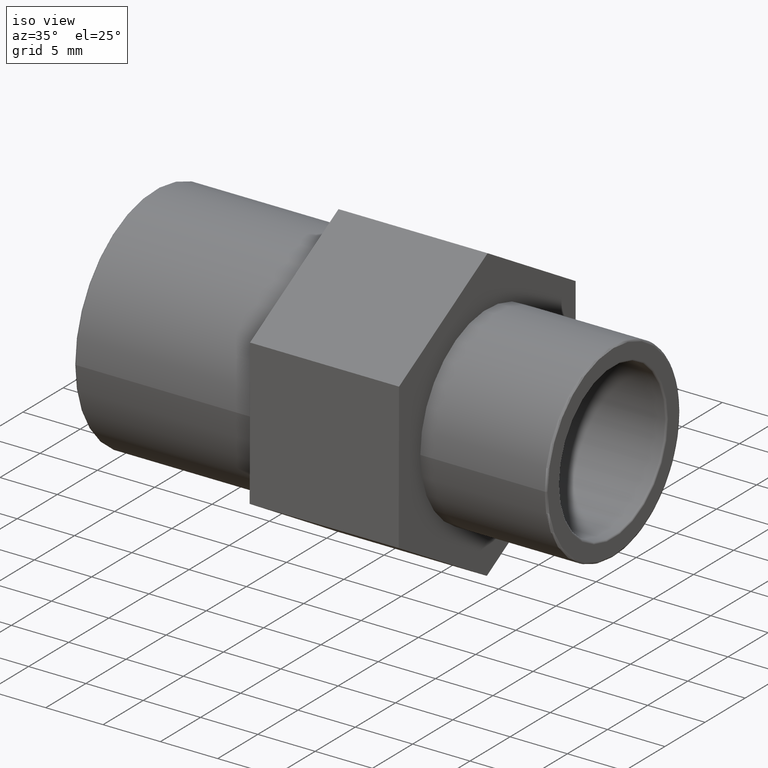
[diagram: clean part render]
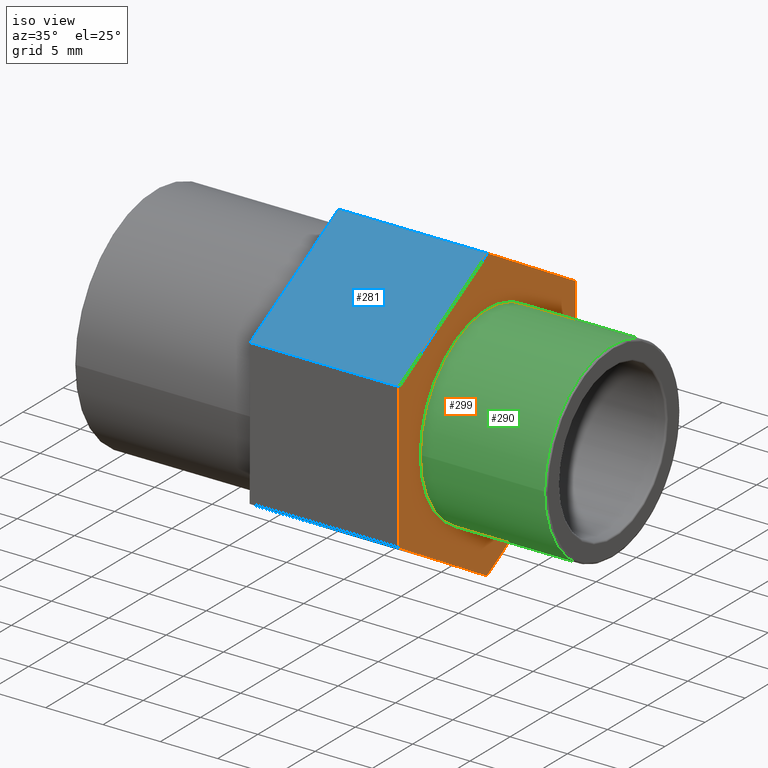
[diagram: same view with three faces highlighted in distinct colors, each labeled with its STEP entity id]
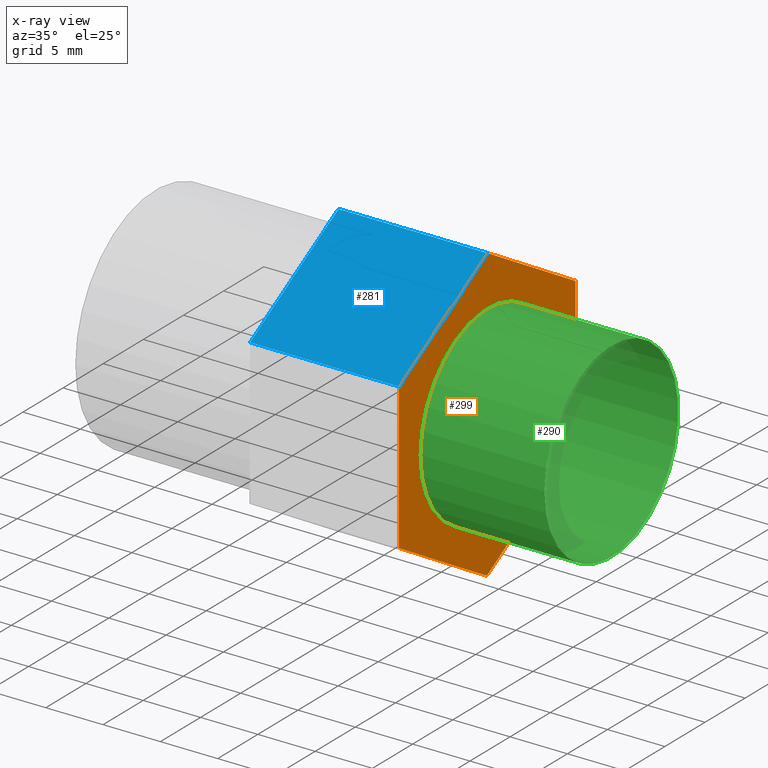
[diagram: x-ray of the same camera — body ghosted, the three highlighted faces saturated]
A machine part, iso view with three faces highlighted in distinct colors.
The next image is the same camera in x-ray (body ghosted, the three faces saturated) — at least one of them is partly hidden behind the body in this view.
Their STEP definitions:

[orange] entity #299 — the highlighted planar face has unit normal (1, 0, 0).
#33=FACE_BOUND('',#107,.T.);
#40=CIRCLE('',#319,8.331);
#72=FACE_OUTER_BOUND('',#106,.T.);
#106=EDGE_LOOP('',(#254,#255,#256,#257,#258,#259));
#107=EDGE_LOOP('',(#260));
#110=LINE('',#432,#128);
#114=LINE('',#440,#132);
#117=LINE('',#446,#135);
#120=LINE('',#453,#138);
#124=LINE('',#460,#142);
#126=LINE('',#463,#144);
#128=VECTOR('',#342,12.7017059221718);
#132=VECTOR('',#348,12.7017059221718);
#135=VECTOR('',#353,12.7017059221718);
#138=VECTOR('',#358,12.7017059221718);
#142=VECTOR('',#364,12.7017059221718);
#144=VECTOR('',#368,12.7017059221718);
#146=VERTEX_POINT('',#430);
#147=VERTEX_POINT('',#431);
#150=VERTEX_POINT('',#439);
#152=VERTEX_POINT('',#445);
#154=VERTEX_POINT('',#451);
#155=VERTEX_POINT('',#452);
#163=VERTEX_POINT('',#480);
#172=EDGE_CURVE('',#146,#147,#110,.T.);
#176=EDGE_CURVE('',#147,#150,#114,.T.);
#179=EDGE_CURVE('',#150,#152,#117,.T.);
#182=EDGE_CURVE('',#154,#155,#120,.T.);
#186=EDGE_CURVE('',#155,#146,#124,.T.);
#188=EDGE_CURVE('',#152,#154,#126,.T.);
#195=EDGE_CURVE('',#163,#163,#40,.T.);
#254=ORIENTED_EDGE('',*,*,#186,.F.);
#255=ORIENTED_EDGE('',*,*,#182,.F.);
#256=ORIENTED_EDGE('',*,*,#188,.F.);
#257=ORIENTED_EDGE('',*,*,#179,.F.);
#258=ORIENTED_EDGE('',*,*,#176,.F.);
#259=ORIENTED_EDGE('',*,*,#172,.F.);
#260=ORIENTED_EDGE('',*,*,#195,.T.);
#278=PLANE('',#336);
#299=ADVANCED_FACE('',(#72,#33),#278,.T.);
#319=AXIS2_PLACEMENT_3D('',#481,#390,#391);
#336=AXIS2_PLACEMENT_3D('',#506,#424,#425);
#342=DIRECTION('',(-2.43778272755286E-18,0.00361927392861375,0.999993450406666));
#348=DIRECTION('',(-5.84531452177392E-16,0.867829368634534,0.496862342037899));
#353=DIRECTION('',(-5.8209366944984E-16,0.864210094705921,-0.503131108368766));
#358=DIRECTION('',(5.84531452177392E-16,-0.867829368634534,-0.496862342037899));
#364=DIRECTION('',(5.8209366944984E-16,-0.86421009470592,0.503131108368767));
#368=DIRECTION('',(2.43778272755263E-18,-0.0036192739286134,-0.999993450406666));
#390=DIRECTION('center_axis',(-1.,-6.73555739531044E-16,0.));
#391=DIRECTION('ref_axis',(0.,0.,1.));
#424=DIRECTION('center_axis',(1.,6.73555739531044E-16,0.));
#425=DIRECTION('ref_axis',(0.,0.,-1.));
#430=CARTESIAN_POINT('',(9.00000000000002,-11.0229134310198,-6.31099935236692));
#431=CARTESIAN_POINT('',(9.00000000000002,-10.9769424779268,6.39062337879642));
#432=CARTESIAN_POINT('',(9.00000000000002,-10.9884352162001,3.21521769600558));
#439=CARTESIAN_POINT('',(9.00000000000001,0.0459709530930354,12.7016227311633));
#440=CARTESIAN_POINT('',(9.00000000000001,-2.70975740466193,11.1238728930716));
#445=CARTESIAN_POINT('',(9.,11.0229134310199,6.31099935236693));
#446=CARTESIAN_POINT('',(9.00000000000001,8.27867781153815,7.90865519706603));
#451=CARTESIAN_POINT('',(9.,10.9769424779268,-6.39062337879641));
#452=CARTESIAN_POINT('',(9.00000000000001,-0.0459709530930208,-12.7016227311633));
#453=CARTESIAN_POINT('',(9.00000000000001,2.70975740466194,-11.1238728930716));
#460=CARTESIAN_POINT('',(9.00000000000001,-8.27867781153814,-7.90865519706602));
#463=CARTESIAN_POINT('',(9.,10.9999279544733,-0.0398120132147451));
#480=CARTESIAN_POINT('',(9.00000000000002,-8.33099999999999,0.));
#481=CARTESIAN_POINT('Origin',(9.00000000000001,9.73594205322146E-15,0.));
#506=CARTESIAN_POINT('Origin',(9.00000000000002,-11.,0.));

[blue] entity #281 — the highlighted planar face has unit normal (0, -0.4969, 0.8678).
#54=FACE_OUTER_BOUND('',#75,.T.);
#75=EDGE_LOOP('',(#208,#209,#210,#211));
#111=LINE('',#434,#129);
#114=LINE('',#440,#132);
#115=LINE('',#442,#133);
#116=LINE('',#443,#134);
#129=VECTOR('',#343,13.);
#132=VECTOR('',#348,12.7017059221718);
#133=VECTOR('',#349,13.);
#134=VECTOR('',#350,12.7017059221718);
#147=VERTEX_POINT('',#431);
#148=VERTEX_POINT('',#433);
#150=VERTEX_POINT('',#439);
#151=VERTEX_POINT('',#441);
#173=EDGE_CURVE('',#148,#147,#111,.T.);
#176=EDGE_CURVE('',#147,#150,#114,.T.);
#177=EDGE_CURVE('',#151,#150,#115,.T.);
#178=EDGE_CURVE('',#151,#148,#116,.T.);
#208=ORIENTED_EDGE('',*,*,#176,.T.);
#209=ORIENTED_EDGE('',*,*,#177,.F.);
#210=ORIENTED_EDGE('',*,*,#178,.T.);
#211=ORIENTED_EDGE('',*,*,#173,.T.);
#269=PLANE('',#304);
#281=ADVANCED_FACE('',(#54),#269,.T.);
#304=AXIS2_PLACEMENT_3D('',#438,#346,#347);
#343=DIRECTION('',(1.,6.8321416900009E-16,0.));
#346=DIRECTION('center_axis',(3.39463392122862E-16,-0.496862342037899,0.867829368634534));
#347=DIRECTION('ref_axis',(5.77315972805081E-16,-0.867829368634534,-0.496862342037899));
#348=DIRECTION('',(-5.84531452177392E-16,0.867829368634534,0.496862342037899));
#349=DIRECTION('',(1.,6.8321416900009E-16,0.));
#350=DIRECTION('',(5.84531452177393E-16,-0.867829368634534,-0.496862342037899));
#431=CARTESIAN_POINT('',(9.00000000000002,-10.9769424779268,6.39062337879642));
#433=CARTESIAN_POINT('',(-4.,-10.9769424779268,6.39062337879642));
#434=CARTESIAN_POINT('',(-4.,-10.9769424779268,6.39062337879642));
#438=CARTESIAN_POINT('Origin',(-4.,0.0459709530930266,12.7016227311633));
#439=CARTESIAN_POINT('',(9.00000000000001,0.0459709530930354,12.7016227311633));
#440=CARTESIAN_POINT('',(9.00000000000001,-2.70975740466193,11.1238728930716));
#441=CARTESIAN_POINT('',(-4.,0.0459709530930266,12.7016227311633));
#442=CARTESIAN_POINT('',(-4.,0.0459709530930266,12.7016227311633));
#443=CARTESIAN_POINT('',(-4.,0.0459709530930266,12.7016227311633));

[green] entity #290 — the highlighted cylindrical surface (bore or boss wall) has radius 8.331 mm, axis along (-1, -0, 0).
#16=CYLINDRICAL_SURFACE('',#318,8.331);
#24=FACE_BOUND('',#89,.T.);
#39=CIRCLE('',#317,8.331);
#40=CIRCLE('',#319,8.331);
#63=FACE_OUTER_BOUND('',#88,.T.);
#88=EDGE_LOOP('',(#236));
#89=EDGE_LOOP('',(#237));
#162=VERTEX_POINT('',#477);
#163=VERTEX_POINT('',#480);
#194=EDGE_CURVE('',#162,#162,#39,.T.);
#195=EDGE_CURVE('',#163,#163,#40,.T.);
#236=ORIENTED_EDGE('',*,*,#195,.F.);
#237=ORIENTED_EDGE('',*,*,#194,.F.);
#290=ADVANCED_FACE('',(#63,#24),#16,.T.);
#317=AXIS2_PLACEMENT_3D('',#478,#386,#387);
#318=AXIS2_PLACEMENT_3D('',#479,#388,#389);
#319=AXIS2_PLACEMENT_3D('',#481,#390,#391);
#386=DIRECTION('center_axis',(1.,6.73555739531044E-16,0.));
#387=DIRECTION('ref_axis',(-6.74649389288783E-16,1.,6.12323399573677E-17));
#388=DIRECTION('center_axis',(-1.,-6.73555739531044E-16,0.));
#389=DIRECTION('ref_axis',(6.93889390390723E-16,-1.,0.));
#390=DIRECTION('center_axis',(-1.,-6.73555739531044E-16,0.));
#391=DIRECTION('ref_axis',(0.,0.,1.));
#477=CARTESIAN_POINT('',(19.84,-8.33099999999999,-1.53037987255449E-15));
#478=CARTESIAN_POINT('Origin',(19.84,1.7037286269738E-14,0.));
#479=CARTESIAN_POINT('Origin',(14.5,1.34404986206422E-14,0.));
#480=CARTESIAN_POINT('',(9.00000000000002,-8.33099999999999,0.));
#481=CARTESIAN_POINT('Origin',(9.00000000000001,9.73594205322146E-15,0.));